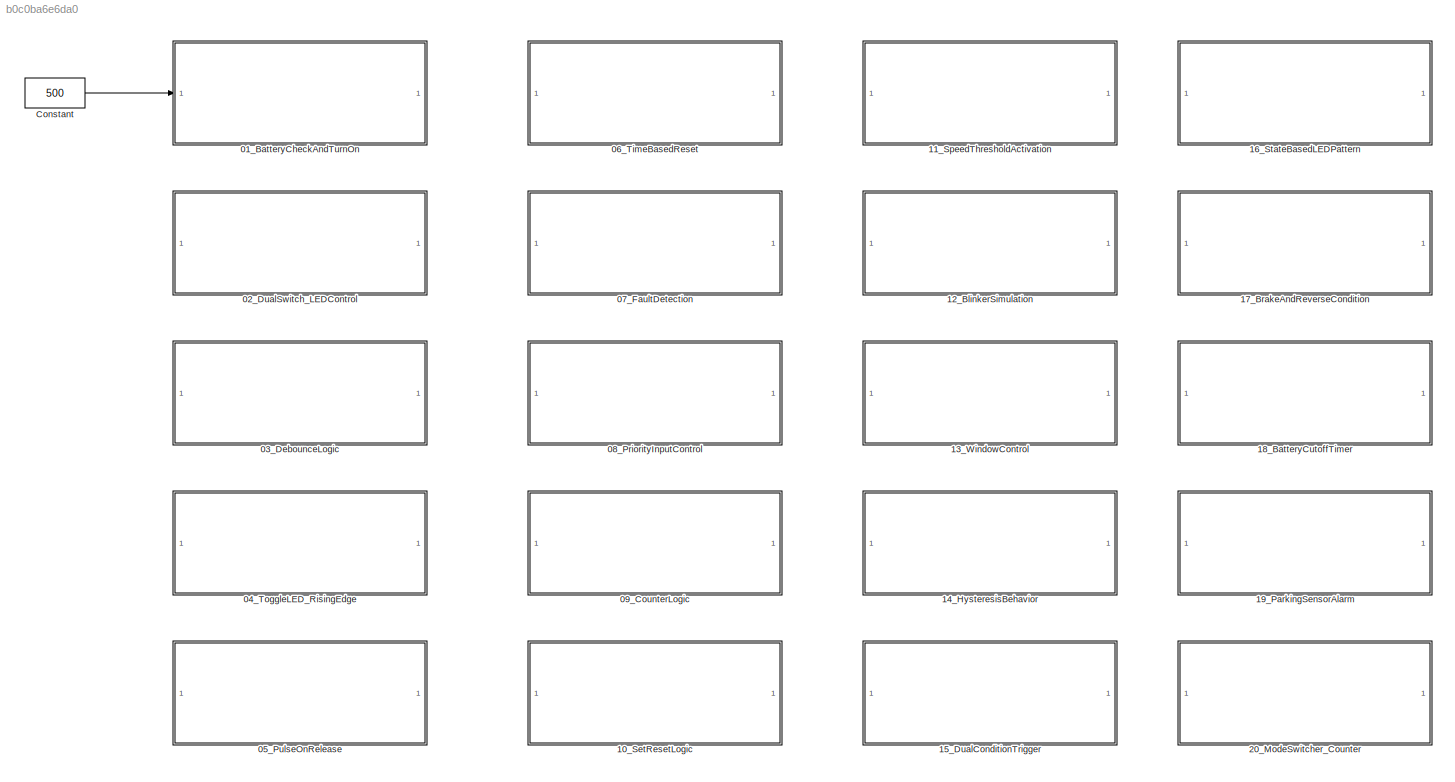
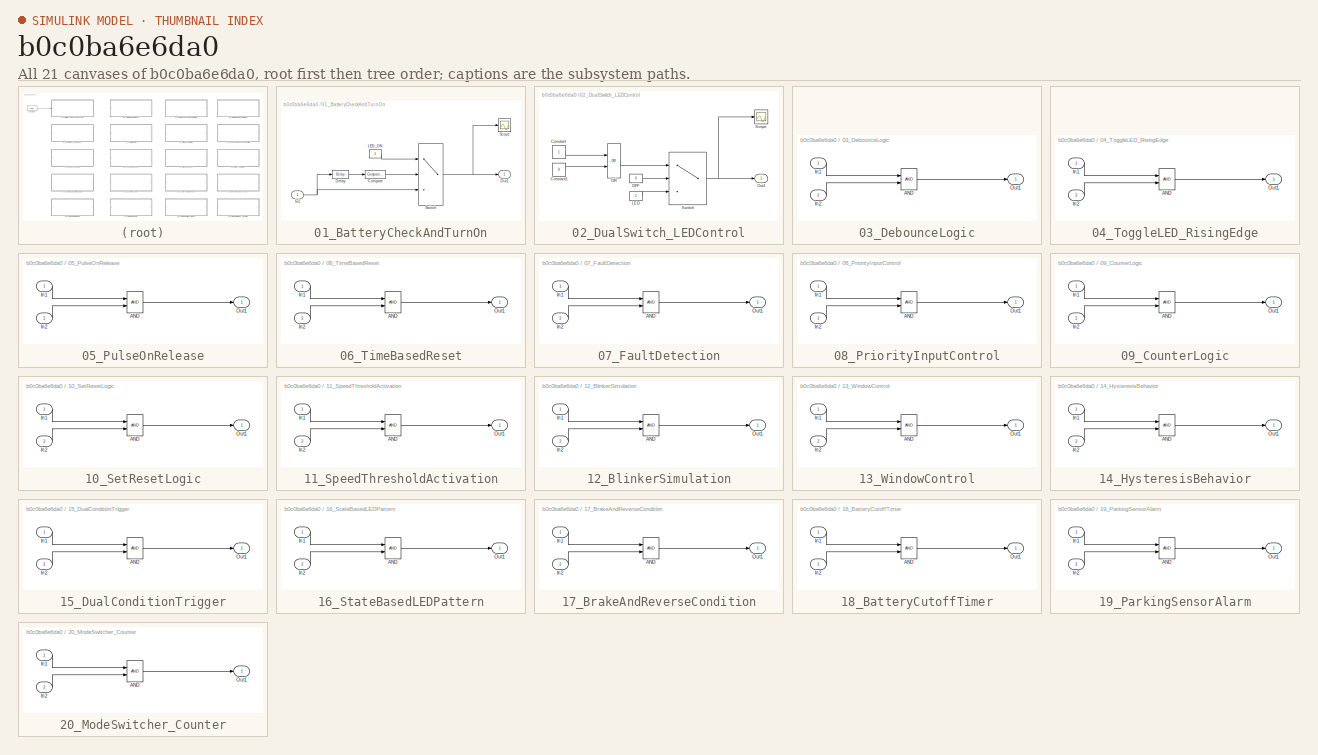
[diagram: thumbnail index - all 21 canvases of the model, root first then tree order]
MODEL slx_b0c0ba6e6da0
KIND model
CONFIG AbsTol = auto
CONFIG EnableMultiTasking = off
CONFIG FixedStep = auto
CONFIG MaxStep = auto
CONFIG MinStep = auto
CONFIG RelTol = 1e-3
CONFIG SampleTimeConstraint = Unconstrained
CONFIG SolverName = VariableStepAuto
CONFIG StartTime = 0.0
CONFIG StopTime = 10.0
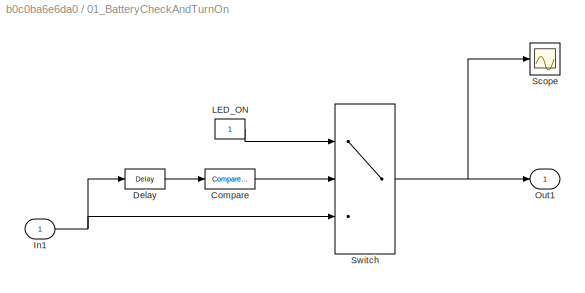
BLOCK [SubSystem] 01_BatteryCheckAndTurnOn
BLOCK [Reference] 01_BatteryCheckAndTurnOn/Compare  REF=simulink/Logic and Bit
Operations/Compare
To Constant
  SourceBlock = simulink/Logic and Bit\nOperations/Compare\nTo Constant
  SourceType = Compare To Constant
BLOCK [Delay] 01_BatteryCheckAndTurnOn/Delay
  DelayLength = 5
  InputPortMap = u0
BLOCK [Inport] 01_BatteryCheckAndTurnOn/In1
BLOCK [Constant] 01_BatteryCheckAndTurnOn/LED_ON
BLOCK [Outport] 01_BatteryCheckAndTurnOn/Out1
BLOCK [Scope] 01_BatteryCheckAndTurnOn/Scope
  ActiveDisplayYMaximum = 689.313483091787
  ActiveDisplayYMinimum = -949.08651690821239
  Floating = off
  GraphicalSettings = {"AxesScalingProperties":{"AlignXAxis":"Center","AlignYAxis":"Center","AutoScaleXAxisLimits":false,"AxesScaling":"Manual","AxesScalingNumUpdates":10,"ExpandOnly":true,"ScaleAxesLimitsAtStop":false,"XAxisDataRange":100,"YAxisDataRange":80},"DisplayProperties":{"ColorOrder":["auto","auto","auto","auto","auto","auto","auto","auto","auto","auto","auto","auto","auto","auto","auto","auto","auto","auto",...<+1910ch>
  MultipleDisplayCache = [{"MaxYLimMag":1.1,"MaxYLimReal":689.313483091787,"MinYLimMag":0.9,"MinYLimReal":-949.08651690821239,"PlotAsMagnitudePhase":false,"ShowGrid":true,"ShowLegend":false,"Title":"%<SignalLabel>","YLabel":""}]
  NumInputPorts = 1
  ScopeFrameLocation = window
  WasSavedAsWebScope = on
  WindowPosition = [488.000000,222.000000,560.000000,420.000000,]
BLOCK [Switch] 01_BatteryCheckAndTurnOn/Switch
  Criteria = u2 > Threshold
  InputSameDT = off
  SaturateOnIntegerOverflow = off
  Threshold = 0.5
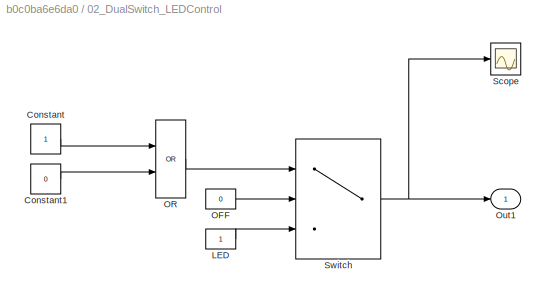
BLOCK [SubSystem] 02_DualSwitch_LEDControl
BLOCK [Constant] 02_DualSwitch_LEDControl/Constant
BLOCK [Constant] 02_DualSwitch_LEDControl/Constant1
  Value = 0
BLOCK [Constant] 02_DualSwitch_LEDControl/LED
BLOCK [Constant] 02_DualSwitch_LEDControl/OFF
  Value = 0
BLOCK [Logic] 02_DualSwitch_LEDControl/OR
  AllPortsSameDT = off
  Operator = OR
  OutDataTypeStr = boolean
BLOCK [Outport] 02_DualSwitch_LEDControl/Out1
BLOCK [Scope] 02_DualSwitch_LEDControl/Scope
  ActiveDisplayYMaximum = 1.1
  ActiveDisplayYMinimum = 0.9
  DataLoggingVariableName = ScopeData1
  Floating = off
  GraphicalSettings = {"Style":{"BackgroundColor":[0.12941176470588237,0.12941176470588237,0.12941176470588237],"AxesColor":[0.07058823529411765,0.07058823529411765,0.07058823529411765],"LabelsColor":[0.8509803921568627,0.8509803921568627,0.8509803921568627],"PreserveColors":false,"Visible":[true],"LineStyle":["-"],"LineWidth":[1.5],"BarWidth":[0.9],"LineColor":["auto"],"LineFaceAlpha":[1],"LineEdgeAlpha":[1],"Marker":...<+1899ch>
  MultipleDisplayCache = [{"MaxYLimMag":1.1,"MaxYLimReal":1.1,"MinYLimMag":0.9,"MinYLimReal":0.9,"PlotAsMagnitudePhase":false,"ShowGrid":true,"ShowLegend":false,"Title":"%<SignalLabel>","YLabel":""}]
  NumInputPorts = 1
  ScopeFrameLocation = window
  WasSavedAsWebScope = on
  WindowPosition = [488.000000,222.000000,560.000000,420.000000,]
BLOCK [Switch] 02_DualSwitch_LEDControl/Switch
  Criteria = u2 > Threshold
  InputSameDT = off
  SaturateOnIntegerOverflow = off
  Threshold = 0.5
BLOCK [SubSystem] 03_DebounceLogic
BLOCK [Logic] 03_DebounceLogic/AND
  AllPortsSameDT = off
  OutDataTypeStr = boolean
BLOCK [Inport] 03_DebounceLogic/In1
BLOCK [Inport] 03_DebounceLogic/In2
  Port = 2
BLOCK [Outport] 03_DebounceLogic/Out1
BLOCK [SubSystem] 04_ToggleLED_RisingEdge
BLOCK [Logic] 04_ToggleLED_RisingEdge/AND
  AllPortsSameDT = off
  OutDataTypeStr = boolean
BLOCK [Inport] 04_ToggleLED_RisingEdge/In1
BLOCK [Inport] 04_ToggleLED_RisingEdge/In2
  Port = 2
BLOCK [Outport] 04_ToggleLED_RisingEdge/Out1
BLOCK [SubSystem] 05_PulseOnRelease
BLOCK [Logic] 05_PulseOnRelease/AND
  AllPortsSameDT = off
  OutDataTypeStr = boolean
BLOCK [Inport] 05_PulseOnRelease/In1
BLOCK [Inport] 05_PulseOnRelease/In2
  Port = 2
BLOCK [Outport] 05_PulseOnRelease/Out1
BLOCK [SubSystem] 06_TimeBasedReset
BLOCK [Logic] 06_TimeBasedReset/AND
  AllPortsSameDT = off
  OutDataTypeStr = boolean
BLOCK [Inport] 06_TimeBasedReset/In1
BLOCK [Inport] 06_TimeBasedReset/In2
  Port = 2
BLOCK [Outport] 06_TimeBasedReset/Out1
BLOCK [SubSystem] 07_FaultDetection
BLOCK [Logic] 07_FaultDetection/AND
  AllPortsSameDT = off
  OutDataTypeStr = boolean
BLOCK [Inport] 07_FaultDetection/In1
BLOCK [Inport] 07_FaultDetection/In2
  Port = 2
BLOCK [Outport] 07_FaultDetection/Out1
BLOCK [SubSystem] 08_PriorityInputControl
BLOCK [Logic] 08_PriorityInputControl/AND
  AllPortsSameDT = off
  OutDataTypeStr = boolean
BLOCK [Inport] 08_PriorityInputControl/In1
BLOCK [Inport] 08_PriorityInputControl/In2
  Port = 2
BLOCK [Outport] 08_PriorityInputControl/Out1
BLOCK [SubSystem] 09_CounterLogic
BLOCK [Logic] 09_CounterLogic/AND
  AllPortsSameDT = off
  OutDataTypeStr = boolean
BLOCK [Inport] 09_CounterLogic/In1
BLOCK [Inport] 09_CounterLogic/In2
  Port = 2
BLOCK [Outport] 09_CounterLogic/Out1
BLOCK [SubSystem] 10_SetResetLogic
BLOCK [Logic] 10_SetResetLogic/AND
  AllPortsSameDT = off
  OutDataTypeStr = boolean
BLOCK [Inport] 10_SetResetLogic/In1
BLOCK [Inport] 10_SetResetLogic/In2
  Port = 2
BLOCK [Outport] 10_SetResetLogic/Out1
BLOCK [SubSystem] 11_SpeedThresholdActivation
BLOCK [Logic] 11_SpeedThresholdActivation/AND
  AllPortsSameDT = off
  OutDataTypeStr = boolean
BLOCK [Inport] 11_SpeedThresholdActivation/In1
BLOCK [Inport] 11_SpeedThresholdActivation/In2
  Port = 2
BLOCK [Outport] 11_SpeedThresholdActivation/Out1
BLOCK [SubSystem] 12_BlinkerSimulation
BLOCK [Logic] 12_BlinkerSimulation/AND
  AllPortsSameDT = off
  OutDataTypeStr = boolean
BLOCK [Inport] 12_BlinkerSimulation/In1
BLOCK [Inport] 12_BlinkerSimulation/In2
  Port = 2
BLOCK [Outport] 12_BlinkerSimulation/Out1
BLOCK [SubSystem] 13_WindowControl
BLOCK [Logic] 13_WindowControl/AND
  AllPortsSameDT = off
  OutDataTypeStr = boolean
BLOCK [Inport] 13_WindowControl/In1
BLOCK [Inport] 13_WindowControl/In2
  Port = 2
BLOCK [Outport] 13_WindowControl/Out1
BLOCK [SubSystem] 14_HysteresisBehavior
BLOCK [Logic] 14_HysteresisBehavior/AND
  AllPortsSameDT = off
  OutDataTypeStr = boolean
BLOCK [Inport] 14_HysteresisBehavior/In1
BLOCK [Inport] 14_HysteresisBehavior/In2
  Port = 2
BLOCK [Outport] 14_HysteresisBehavior/Out1
BLOCK [SubSystem] 15_DualConditionTrigger
BLOCK [Logic] 15_DualConditionTrigger/AND
  AllPortsSameDT = off
  OutDataTypeStr = boolean
BLOCK [Inport] 15_DualConditionTrigger/In1
BLOCK [Inport] 15_DualConditionTrigger/In2
  Port = 2
BLOCK [Outport] 15_DualConditionTrigger/Out1
BLOCK [SubSystem] 16_StateBasedLEDPattern
BLOCK [Logic] 16_StateBasedLEDPattern/AND
  AllPortsSameDT = off
  OutDataTypeStr = boolean
BLOCK [Inport] 16_StateBasedLEDPattern/In1
BLOCK [Inport] 16_StateBasedLEDPattern/In2
  Port = 2
BLOCK [Outport] 16_StateBasedLEDPattern/Out1
BLOCK [SubSystem] 17_BrakeAndReverseCondition
BLOCK [Logic] 17_BrakeAndReverseCondition/AND
  AllPortsSameDT = off
  OutDataTypeStr = boolean
BLOCK [Inport] 17_BrakeAndReverseCondition/In1
BLOCK [Inport] 17_BrakeAndReverseCondition/In2
  Port = 2
BLOCK [Outport] 17_BrakeAndReverseCondition/Out1
BLOCK [SubSystem] 18_BatteryCutoffTimer
BLOCK [Logic] 18_BatteryCutoffTimer/AND
  AllPortsSameDT = off
  OutDataTypeStr = boolean
BLOCK [Inport] 18_BatteryCutoffTimer/In1
BLOCK [Inport] 18_BatteryCutoffTimer/In2
  Port = 2
BLOCK [Outport] 18_BatteryCutoffTimer/Out1
BLOCK [SubSystem] 19_ParkingSensorAlarm
BLOCK [Logic] 19_ParkingSensorAlarm/AND
  AllPortsSameDT = off
  OutDataTypeStr = boolean
BLOCK [Inport] 19_ParkingSensorAlarm/In1
BLOCK [Inport] 19_ParkingSensorAlarm/In2
  Port = 2
BLOCK [Outport] 19_ParkingSensorAlarm/Out1
BLOCK [SubSystem] 20_ModeSwitcher_Counter
BLOCK [Logic] 20_ModeSwitcher_Counter/AND
  AllPortsSameDT = off
  OutDataTypeStr = boolean
BLOCK [Inport] 20_ModeSwitcher_Counter/In1
BLOCK [Inport] 20_ModeSwitcher_Counter/In2
  Port = 2
BLOCK [Outport] 20_ModeSwitcher_Counter/Out1
BLOCK [Constant] Constant
  Value = 500
LINE 01_BatteryCheckAndTurnOn/Compare:1 -> 01_BatteryCheckAndTurnOn/Switch:2
LINE 01_BatteryCheckAndTurnOn/Delay:1 -> 01_BatteryCheckAndTurnOn/Compare:1
NET 01_BatteryCheckAndTurnOn/In1:1 -> 01_BatteryCheckAndTurnOn/Delay:1, 01_BatteryCheckAndTurnOn/Switch:3
LINE 01_BatteryCheckAndTurnOn/LED_ON:1 -> 01_BatteryCheckAndTurnOn/Switch:1
NET 01_BatteryCheckAndTurnOn/Switch:1 -> 01_BatteryCheckAndTurnOn/Out1:1, 01_BatteryCheckAndTurnOn/Scope:1
LINE 02_DualSwitch_LEDControl/Constant1:1 -> 02_DualSwitch_LEDControl/OR:2
LINE 02_DualSwitch_LEDControl/Constant:1 -> 02_DualSwitch_LEDControl/OR:1
LINE 02_DualSwitch_LEDControl/LED:1 -> 02_DualSwitch_LEDControl/Switch:3
LINE 02_DualSwitch_LEDControl/OFF:1 -> 02_DualSwitch_LEDControl/Switch:2
LINE 02_DualSwitch_LEDControl/OR:1 -> 02_DualSwitch_LEDControl/Switch:1
NET 02_DualSwitch_LEDControl/Switch:1 -> 02_DualSwitch_LEDControl/Out1:1, 02_DualSwitch_LEDControl/Scope:1
LINE 03_DebounceLogic/AND:1 -> 03_DebounceLogic/Out1:1
LINE 03_DebounceLogic/In1:1 -> 03_DebounceLogic/AND:1
LINE 03_DebounceLogic/In2:1 -> 03_DebounceLogic/AND:2
LINE 04_ToggleLED_RisingEdge/AND:1 -> 04_ToggleLED_RisingEdge/Out1:1
LINE 04_ToggleLED_RisingEdge/In1:1 -> 04_ToggleLED_RisingEdge/AND:1
LINE 04_ToggleLED_RisingEdge/In2:1 -> 04_ToggleLED_RisingEdge/AND:2
LINE 05_PulseOnRelease/AND:1 -> 05_PulseOnRelease/Out1:1
LINE 05_PulseOnRelease/In1:1 -> 05_PulseOnRelease/AND:1
LINE 05_PulseOnRelease/In2:1 -> 05_PulseOnRelease/AND:2
LINE 06_TimeBasedReset/AND:1 -> 06_TimeBasedReset/Out1:1
LINE 06_TimeBasedReset/In1:1 -> 06_TimeBasedReset/AND:1
LINE 06_TimeBasedReset/In2:1 -> 06_TimeBasedReset/AND:2
LINE 07_FaultDetection/AND:1 -> 07_FaultDetection/Out1:1
LINE 07_FaultDetection/In1:1 -> 07_FaultDetection/AND:1
LINE 07_FaultDetection/In2:1 -> 07_FaultDetection/AND:2
LINE 08_PriorityInputControl/AND:1 -> 08_PriorityInputControl/Out1:1
LINE 08_PriorityInputControl/In1:1 -> 08_PriorityInputControl/AND:1
LINE 08_PriorityInputControl/In2:1 -> 08_PriorityInputControl/AND:2
LINE 09_CounterLogic/AND:1 -> 09_CounterLogic/Out1:1
LINE 09_CounterLogic/In1:1 -> 09_CounterLogic/AND:1
LINE 09_CounterLogic/In2:1 -> 09_CounterLogic/AND:2
LINE 10_SetResetLogic/AND:1 -> 10_SetResetLogic/Out1:1
LINE 10_SetResetLogic/In1:1 -> 10_SetResetLogic/AND:1
LINE 10_SetResetLogic/In2:1 -> 10_SetResetLogic/AND:2
LINE 11_SpeedThresholdActivation/AND:1 -> 11_SpeedThresholdActivation/Out1:1
LINE 11_SpeedThresholdActivation/In1:1 -> 11_SpeedThresholdActivation/AND:1
LINE 11_SpeedThresholdActivation/In2:1 -> 11_SpeedThresholdActivation/AND:2
LINE 12_BlinkerSimulation/AND:1 -> 12_BlinkerSimulation/Out1:1
LINE 12_BlinkerSimulation/In1:1 -> 12_BlinkerSimulation/AND:1
LINE 12_BlinkerSimulation/In2:1 -> 12_BlinkerSimulation/AND:2
LINE 13_WindowControl/AND:1 -> 13_WindowControl/Out1:1
LINE 13_WindowControl/In1:1 -> 13_WindowControl/AND:1
LINE 13_WindowControl/In2:1 -> 13_WindowControl/AND:2
LINE 14_HysteresisBehavior/AND:1 -> 14_HysteresisBehavior/Out1:1
LINE 14_HysteresisBehavior/In1:1 -> 14_HysteresisBehavior/AND:1
LINE 14_HysteresisBehavior/In2:1 -> 14_HysteresisBehavior/AND:2
LINE 15_DualConditionTrigger/AND:1 -> 15_DualConditionTrigger/Out1:1
LINE 15_DualConditionTrigger/In1:1 -> 15_DualConditionTrigger/AND:1
LINE 15_DualConditionTrigger/In2:1 -> 15_DualConditionTrigger/AND:2
LINE 16_StateBasedLEDPattern/AND:1 -> 16_StateBasedLEDPattern/Out1:1
LINE 16_StateBasedLEDPattern/In1:1 -> 16_StateBasedLEDPattern/AND:1
LINE 16_StateBasedLEDPattern/In2:1 -> 16_StateBasedLEDPattern/AND:2
LINE 17_BrakeAndReverseCondition/AND:1 -> 17_BrakeAndReverseCondition/Out1:1
LINE 17_BrakeAndReverseCondition/In1:1 -> 17_BrakeAndReverseCondition/AND:1
LINE 17_BrakeAndReverseCondition/In2:1 -> 17_BrakeAndReverseCondition/AND:2
LINE 18_BatteryCutoffTimer/AND:1 -> 18_BatteryCutoffTimer/Out1:1
LINE 18_BatteryCutoffTimer/In1:1 -> 18_BatteryCutoffTimer/AND:1
LINE 18_BatteryCutoffTimer/In2:1 -> 18_BatteryCutoffTimer/AND:2
LINE 19_ParkingSensorAlarm/AND:1 -> 19_ParkingSensorAlarm/Out1:1
LINE 19_ParkingSensorAlarm/In1:1 -> 19_ParkingSensorAlarm/AND:1
LINE 19_ParkingSensorAlarm/In2:1 -> 19_ParkingSensorAlarm/AND:2
LINE 20_ModeSwitcher_Counter/AND:1 -> 20_ModeSwitcher_Counter/Out1:1
LINE 20_ModeSwitcher_Counter/In1:1 -> 20_ModeSwitcher_Counter/AND:1
LINE 20_ModeSwitcher_Counter/In2:1 -> 20_ModeSwitcher_Counter/AND:2
LINE Constant:1 -> 01_BatteryCheckAndTurnOn:1
note: NET lines group one-source signal fan-out (src -> all destinations, sorted); 1:1 wires keep LINE
